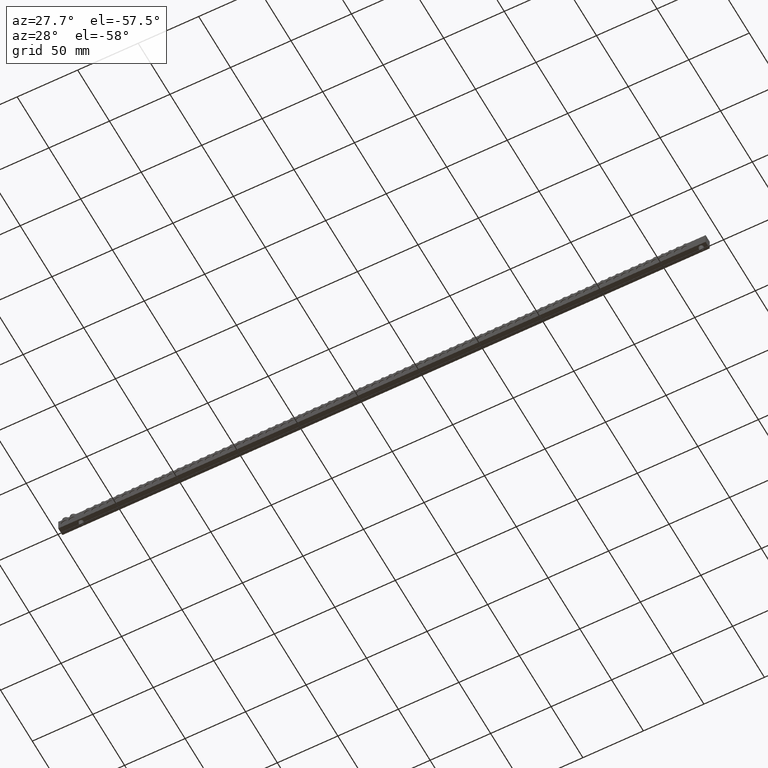
[diagram: clean part render]
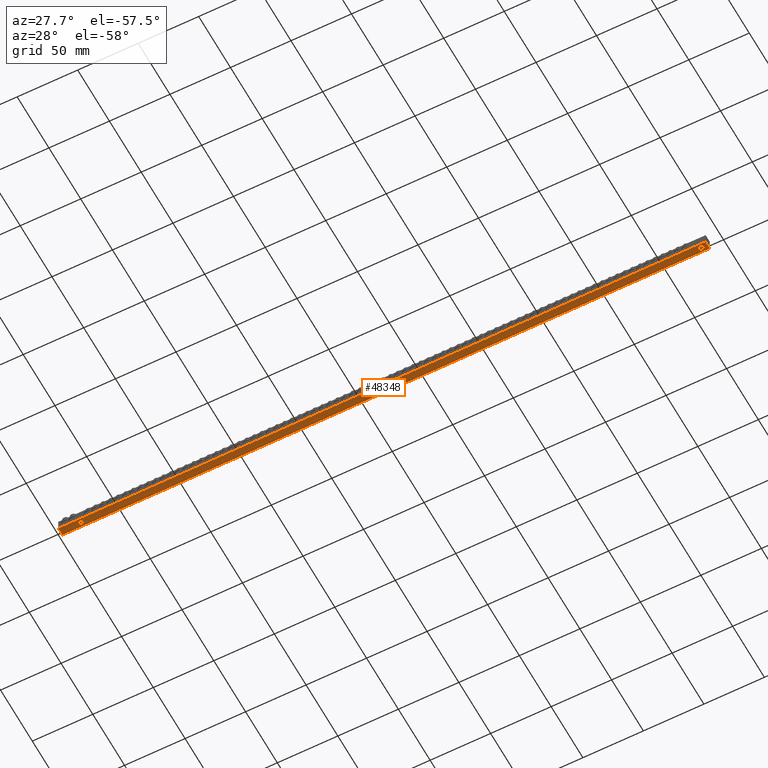
[diagram: same view with one face highlighted and labeled with its STEP entity id]
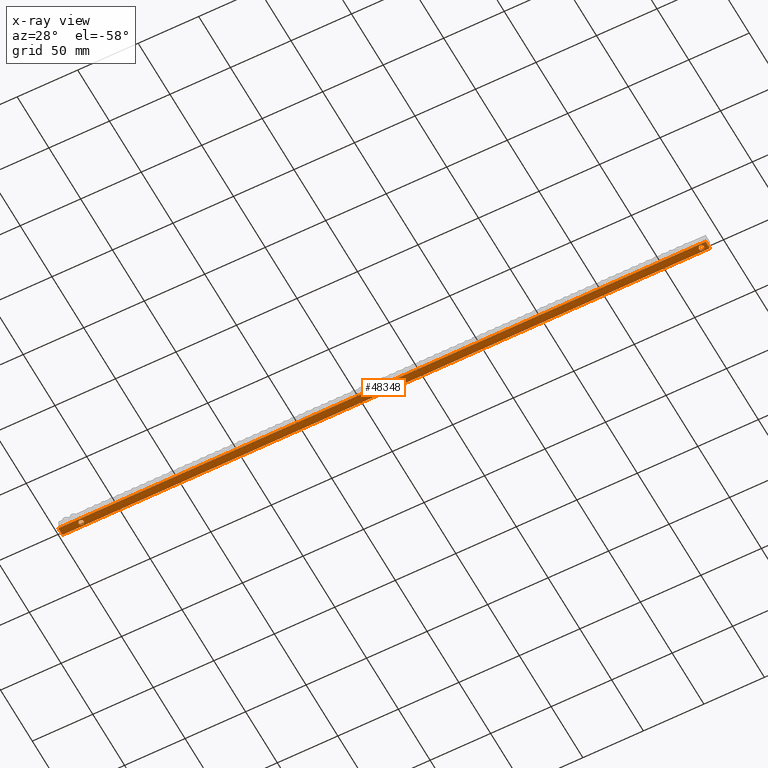
[diagram: x-ray of the same camera — body ghosted, the highlighted face saturated]
A machine part, auxiliary view. The second image highlights one B-rep face of the part: STEP entity #48348.
The next image is the same camera in x-ray: the body ghosted, the highlighted face saturated — about 0% of this face is hidden behind the body in this view.
In plain terms, the highlighted planar face has unit normal (0, 0, -1).
Its self-contained STEP definition (entity closure, byte-faithful):
#404 = VERTEX_POINT ( 'NONE', #52506 ) ;
#427 = VERTEX_POINT ( 'NONE', #52588 ) ;
#458 = VERTEX_POINT ( 'NONE', #52564 ) ;
#477 = VERTEX_POINT ( 'NONE', #52549 ) ;
#1836 = VERTEX_POINT ( 'NONE', #9624 ) ;
#1842 = VERTEX_POINT ( 'NONE', #9679 ) ;
#1865 = VERTEX_POINT ( 'NONE', #9667 ) ;
#1872 = VERTEX_POINT ( 'NONE', #9620 ) ;
#5248 = CIRCLE ( 'NONE', #5315, 2.100000000000001000 ) ;
#5315 = AXIS2_PLACEMENT_3D ( 'NONE', #10821, #10811, #10825 ) ;
#7562 = CIRCLE ( 'NONE', #7563, 2.149999999999985300 ) ;
#7563 = AXIS2_PLACEMENT_3D ( 'NONE', #10611, #10617, #10653 ) ;
#9620 = CARTESIAN_POINT ( 'NONE',  ( 15.40000000000000400, 3.249999999999999600, 0.0000000000000000000 ) ) ;
#9624 = CARTESIAN_POINT ( 'NONE',  ( 532.1499999999999800, 3.250000000000000900, 0.0000000000000000000 ) ) ;
#9667 = CARTESIAN_POINT ( 'NONE',  ( 527.8500000000000200, 3.250000000000001300, 0.0000000000000000000 ) ) ;
#9679 = CARTESIAN_POINT ( 'NONE',  ( 19.60000000000000500, 3.249999999999999100, 0.0000000000000000000 ) ) ;
#10611 = CARTESIAN_POINT ( 'NONE',  ( 530.0000000000000000, 3.250000000000000900, 0.0000000000000000000 ) ) ;
#10617 = DIRECTION ( 'NONE',  ( 0.0000000000000000000, 0.0000000000000000000, -1.000000000000000000 ) ) ;
#10653 = DIRECTION ( 'NONE',  ( -1.000000000000000000, 0.0000000000000000000, 0.0000000000000000000 ) ) ;
#10811 = DIRECTION ( 'NONE',  ( 0.0000000000000000000, 0.0000000000000000000, -1.000000000000000000 ) ) ;
#10821 = CARTESIAN_POINT ( 'NONE',  ( 17.50000000000000400, 3.249999999999999100, 0.0000000000000000000 ) ) ;
#10825 = DIRECTION ( 'NONE',  ( -1.000000000000000000, 0.0000000000000000000, 0.0000000000000000000 ) ) ;
#13867 = DIRECTION ( 'NONE',  ( 1.000000000000000000, -0.0000000000000000000, 0.0000000000000000000 ) ) ;
#13870 = DIRECTION ( 'NONE',  ( 0.0000000000000000000, -1.000000000000000000, 0.0000000000000000000 ) ) ;
#13877 = LINE ( 'NONE', #13907, #51097 ) ;
#13892 = CARTESIAN_POINT ( 'NONE',  ( 535.2000000000000500, 0.0000000000000000000, 0.0000000000000000000 ) ) ;
#13899 = LINE ( 'NONE', #13892, #51062 ) ;
#13907 = CARTESIAN_POINT ( 'NONE',  ( 0.0000000000000000000, 6.499999999999999100, 0.0000000000000000000 ) ) ;
#13915 = LINE ( 'NONE', #13938, #51070 ) ;
#13924 = DIRECTION ( 'NONE',  ( -1.000000000000000000, 0.0000000000000000000, 0.0000000000000000000 ) ) ;
#13925 = DIRECTION ( 'NONE',  ( 0.0000000000000000000, 1.000000000000000000, 0.0000000000000000000 ) ) ;
#13938 = CARTESIAN_POINT ( 'NONE',  ( 0.2000000000000000100, 0.0000000000000000000, 0.0000000000000000000 ) ) ;
#13941 = CARTESIAN_POINT ( 'NONE',  ( 17.50000000000000400, 3.249999999999999100, 0.0000000000000000000 ) ) ;
#13946 = DIRECTION ( 'NONE',  ( 0.0000000000000000000, 0.0000000000000000000, -1.000000000000000000 ) ) ;
#14001 = CARTESIAN_POINT ( 'NONE',  ( 0.0000000000000000000, 0.0000000000000000000, 0.0000000000000000000 ) ) ;
#14011 = LINE ( 'NONE', #14001, #51125 ) ;
#14026 = DIRECTION ( 'NONE',  ( -1.000000000000000000, 0.0000000000000000000, -0.0000000000000000000 ) ) ;
#14107 = DIRECTION ( 'NONE',  ( -1.000000000000000000, 0.0000000000000000000, 0.0000000000000000000 ) ) ;
#14113 = DIRECTION ( 'NONE',  ( 0.0000000000000000000, 0.0000000000000000000, -1.000000000000000000 ) ) ;
#14117 = CARTESIAN_POINT ( 'NONE',  ( 530.0000000000000000, 3.250000000000000900, 0.0000000000000000000 ) ) ;
#23761 = AXIS2_PLACEMENT_3D ( 'NONE', #46924, #46955, #46934 ) ;
#29400 = EDGE_CURVE ( 'NONE', #404, #427, #13899, .T. ) ;
#29407 = EDGE_CURVE ( 'NONE', #458, #404, #13877, .T. ) ;
#29414 = EDGE_CURVE ( 'NONE', #477, #458, #13915, .T. ) ;
#29420 = EDGE_CURVE ( 'NONE', #1872, #1842, #51090, .T. ) ;
#29437 = EDGE_CURVE ( 'NONE', #427, #477, #14011, .T. ) ;
#29461 = EDGE_CURVE ( 'NONE', #1865, #1836, #51166, .T. ) ;
#33917 = EDGE_CURVE ( 'NONE', #1836, #1865, #7562, .T. ) ;
#33943 = EDGE_CURVE ( 'NONE', #1842, #1872, #5248, .T. ) ;
#37206 = EDGE_LOOP ( 'NONE', ( #44654, #44664, #44662, #44660 ) ) ;
#37272 = EDGE_LOOP ( 'NONE', ( #44525, #44657 ) ) ;
#37277 = EDGE_LOOP ( 'NONE', ( #44560, #44497 ) ) ;
#44497 = ORIENTED_EDGE ( 'NONE', *, *, #29461, .F. ) ;
#44525 = ORIENTED_EDGE ( 'NONE', *, *, #33943, .F. ) ;
#44560 = ORIENTED_EDGE ( 'NONE', *, *, #33917, .F. ) ;
#44654 = ORIENTED_EDGE ( 'NONE', *, *, #29414, .T. ) ;
#44657 = ORIENTED_EDGE ( 'NONE', *, *, #29420, .F. ) ;
#44660 = ORIENTED_EDGE ( 'NONE', *, *, #29437, .T. ) ;
#44662 = ORIENTED_EDGE ( 'NONE', *, *, #29400, .T. ) ;
#44664 = ORIENTED_EDGE ( 'NONE', *, *, #29407, .T. ) ;
#46923 = FACE_BOUND ( 'NONE', #37272, .T. ) ;
#46924 = CARTESIAN_POINT ( 'NONE',  ( 0.0000000000000000000, 6.499999999999999100, 0.0000000000000000000 ) ) ;
#46934 = DIRECTION ( 'NONE',  ( -1.000000000000000000, 0.0000000000000000000, -0.0000000000000000000 ) ) ;
#46940 = FACE_OUTER_BOUND ( 'NONE', #37206, .T. ) ;
#46942 = FACE_BOUND ( 'NONE', #37277, .T. ) ;
#46954 = PLANE ( 'NONE',  #23761 ) ;
#46955 = DIRECTION ( 'NONE',  ( 0.0000000000000000000, 0.0000000000000000000, -1.000000000000000000 ) ) ;
#48348 = ADVANCED_FACE ( 'NONE', ( #46923, #46942, #46940 ), #46954, .T. ) ;
#51062 = VECTOR ( 'NONE', #13870, 1000.000000000000000 ) ;
#51070 = VECTOR ( 'NONE', #13925, 1000.000000000000000 ) ;
#51090 = CIRCLE ( 'NONE', #51103, 2.100000000000001000 ) ;
#51097 = VECTOR ( 'NONE', #13867, 1000.000000000000000 ) ;
#51103 = AXIS2_PLACEMENT_3D ( 'NONE', #13941, #13946, #13924 ) ;
#51125 = VECTOR ( 'NONE', #14026, 1000.000000000000000 ) ;
#51160 = AXIS2_PLACEMENT_3D ( 'NONE', #14117, #14113, #14107 ) ;
#51166 = CIRCLE ( 'NONE', #51160, 2.149999999999985300 ) ;
#52506 = CARTESIAN_POINT ( 'NONE',  ( 535.2000000000000500, 6.499999999999999100, 0.0000000000000000000 ) ) ;
#52549 = CARTESIAN_POINT ( 'NONE',  ( 0.2000000000000000100, 0.0000000000000000000, 0.0000000000000000000 ) ) ;
#52564 = CARTESIAN_POINT ( 'NONE',  ( 0.2000000000000000100, 6.499999999999999100, 0.0000000000000000000 ) ) ;
#52588 = CARTESIAN_POINT ( 'NONE',  ( 535.2000000000000500, 0.0000000000000000000, 0.0000000000000000000 ) ) ;